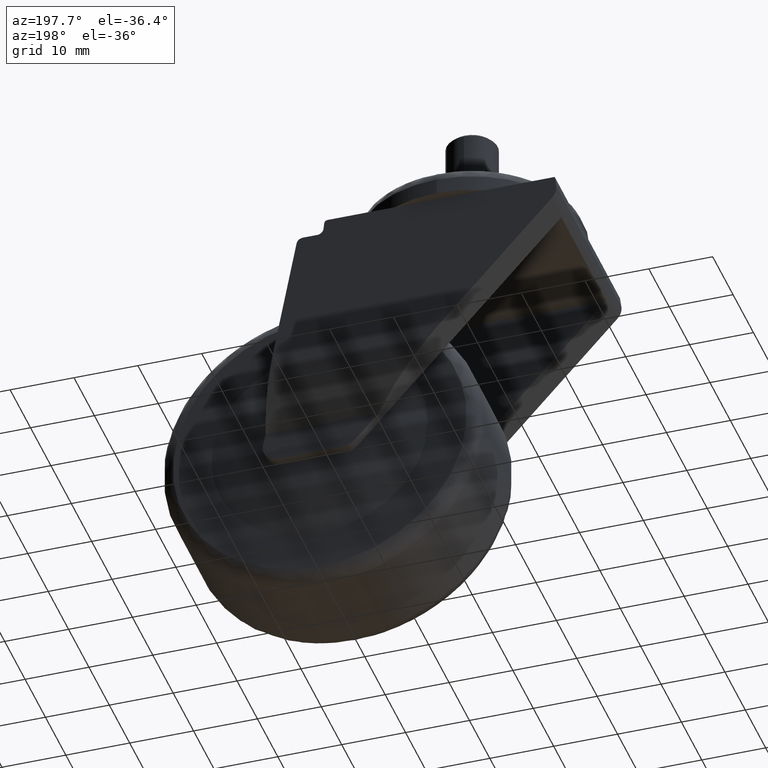
[diagram: clean part render]
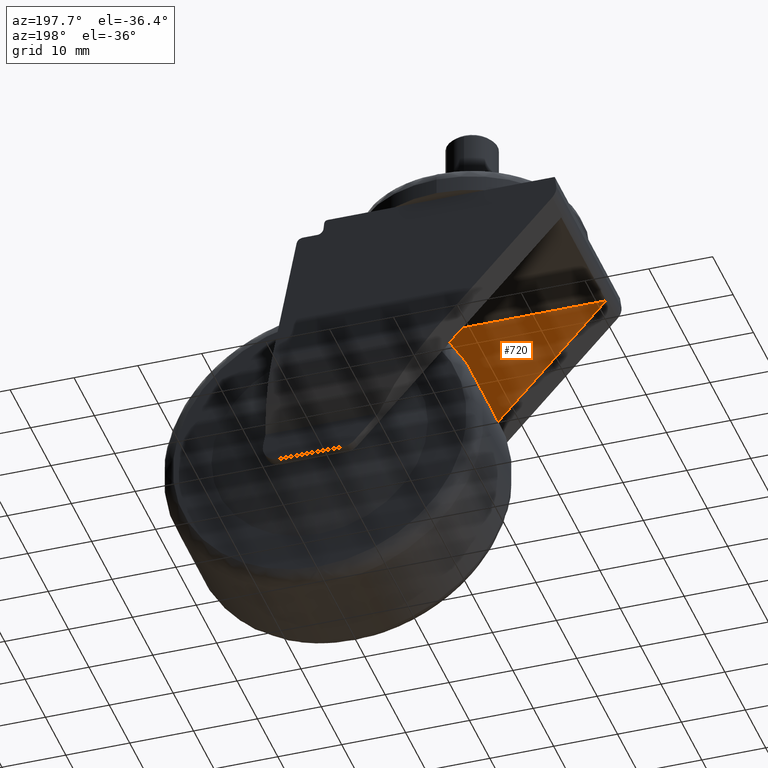
[diagram: same view with one face highlighted and labeled with its STEP entity id]
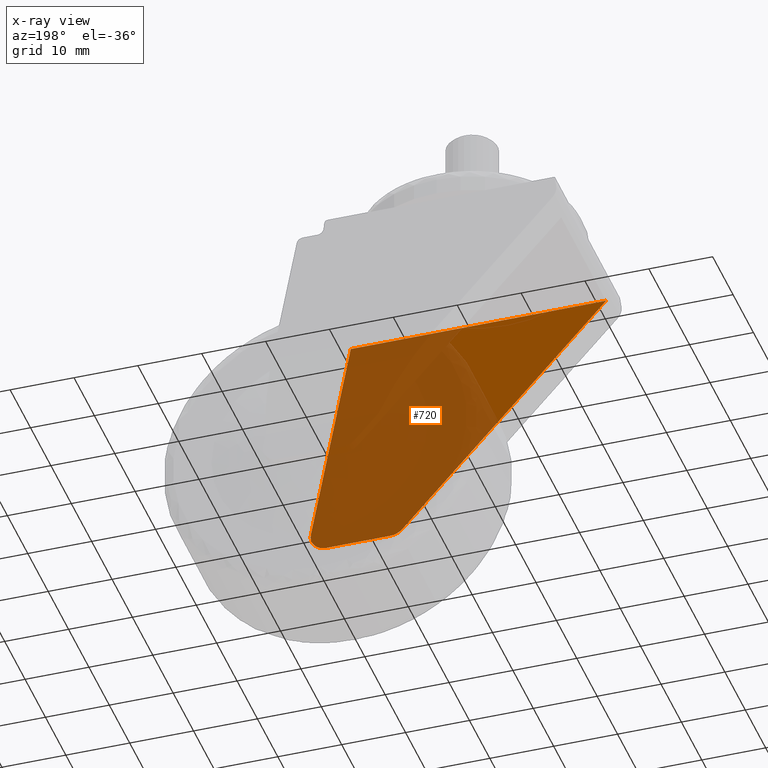
[diagram: x-ray of the same camera — body ghosted, the highlighted face saturated]
A machine part, auxiliary view. The second image highlights one B-rep face of the part: STEP entity #720.
The next image is the same camera in x-ray: the body ghosted, the highlighted face saturated — about 76% of this face is hidden behind the body in this view.
In plain terms, the highlighted planar face has unit normal (0, -1, 0).
Its self-contained STEP definition (entity closure, byte-faithful):
#49=CARTESIAN_POINT('',(28.752358248179007,-10.954180677206752,-41.422576309735405));
#50=VERTEX_POINT('',#49);
#68=CARTESIAN_POINT('',(26.295960224262672,-10.954180677206754,-44.387453737370151));
#69=VERTEX_POINT('',#68);
#76=CARTESIAN_POINT('',(26.295960224262675,-10.954180677206756,-41.887453353775079));
#77=DIRECTION('',(0.0,1.000000000000000,-6.123234E-017));
#78=DIRECTION('',(0.982559058804638,1.138620E-017,0.185950789083950));
#79=AXIS2_PLACEMENT_3D('',#76,#77,#78);
#80=CIRCLE('',#79,2.500000383594998);
#81=EDGE_CURVE('',#50,#69,#80,.T.);
#125=CARTESIAN_POINT('',(22.500939054577017,-10.954180677206750,-8.390242382492033));
#126=VERTEX_POINT('',#125);
#127=CARTESIAN_POINT('',(28.752358248179007,-10.954180677206752,-41.422576309735405));
#128=DIRECTION('',(-0.185950789084049,5.283839E-017,0.982559058804619));
#129=VECTOR('',#128,33.618675265617604);
#130=LINE('',#127,#129);
#131=EDGE_CURVE('',#50,#126,#130,.T.);
#445=CARTESIAN_POINT('',(-17.474718626746835,-10.954180677206750,-8.390242382492033));
#446=VERTEX_POINT('',#445);
#453=CARTESIAN_POINT('',(14.445321993029211,-10.954180677206754,-43.567427136008064));
#454=VERTEX_POINT('',#453);
#455=CARTESIAN_POINT('',(14.445321993029211,-10.954180677206754,-43.567427136008064));
#456=DIRECTION('',(-0.671989936563075,3.739638E-017,0.740560277869367));
#457=VECTOR('',#456,47.500771786899982);
#458=LINE('',#455,#457);
#459=EDGE_CURVE('',#454,#446,#458,.T.);
#565=CARTESIAN_POINT('',(16.296725945092476,-10.954180677206754,-44.387453737368105));
#566=VERTEX_POINT('',#565);
#583=CARTESIAN_POINT('',(16.296725945092476,-10.954180677206752,-41.887449338820261));
#584=DIRECTION('',(0.0,1.0,-6.123234E-017));
#585=DIRECTION('',(0.0,-6.123234E-017,-1.0));
#586=AXIS2_PLACEMENT_3D('',#583,#584,#585);
#587=CIRCLE('',#586,2.500004398547844);
#588=EDGE_CURVE('',#566,#454,#587,.T.);
#628=CARTESIAN_POINT('',(26.295960224262672,-10.954180677206754,-44.387453737370151));
#629=DIRECTION('',(-1.0,0.0,2.046520E-013));
#630=VECTOR('',#629,9.999234279170196);
#631=LINE('',#628,#630);
#632=EDGE_CURVE('',#69,#566,#631,.T.);
#697=CARTESIAN_POINT('',(-17.474718626746835,-10.954180677206750,-8.390242382492033));
#698=DIRECTION('',(1.0,0.0,0.0));
#699=VECTOR('',#698,39.975657681323852);
#700=LINE('',#697,#699);
#701=EDGE_CURVE('',#446,#126,#700,.T.);
#707=CARTESIAN_POINT('',(-51.797145843505859,-10.954180677206750,-8.390242382492033));
#708=DIRECTION('',(0.0,-1.0,0.0));
#709=DIRECTION('',(0.0,0.0,-1.0));
#710=AXIS2_PLACEMENT_3D('',#707,#708,#709);
#711=PLANE('',#710);
#712=ORIENTED_EDGE('',*,*,#701,.T.);
#713=ORIENTED_EDGE('',*,*,#131,.F.);
#714=ORIENTED_EDGE('',*,*,#81,.T.);
#715=ORIENTED_EDGE('',*,*,#632,.T.);
#716=ORIENTED_EDGE('',*,*,#588,.T.);
#717=ORIENTED_EDGE('',*,*,#459,.T.);
#718=EDGE_LOOP('',(#712,#713,#714,#715,#716,#717));
#719=FACE_OUTER_BOUND('',#718,.T.);
#720=ADVANCED_FACE('',(#719),#711,.F.);